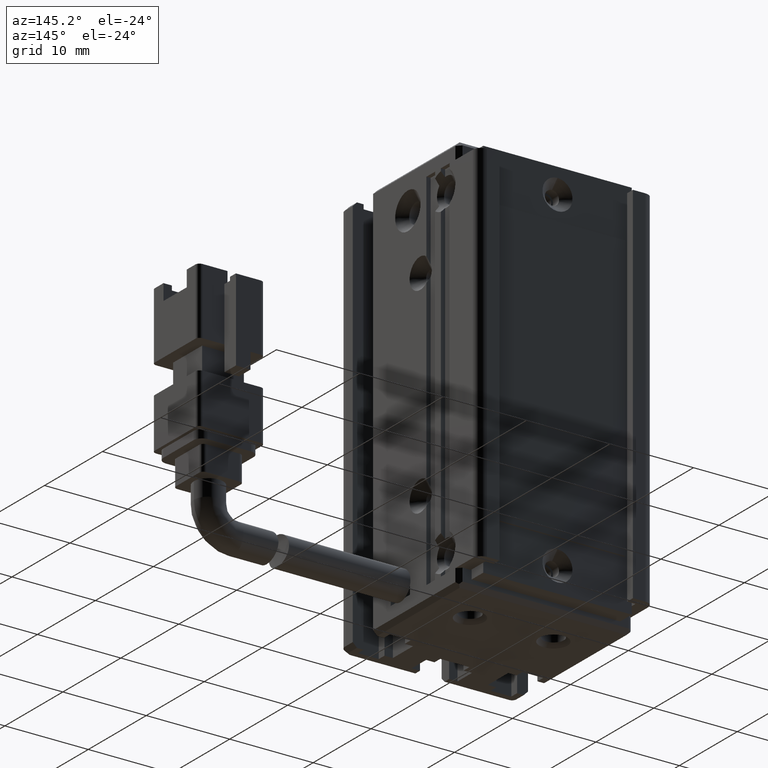
[diagram: clean part render]
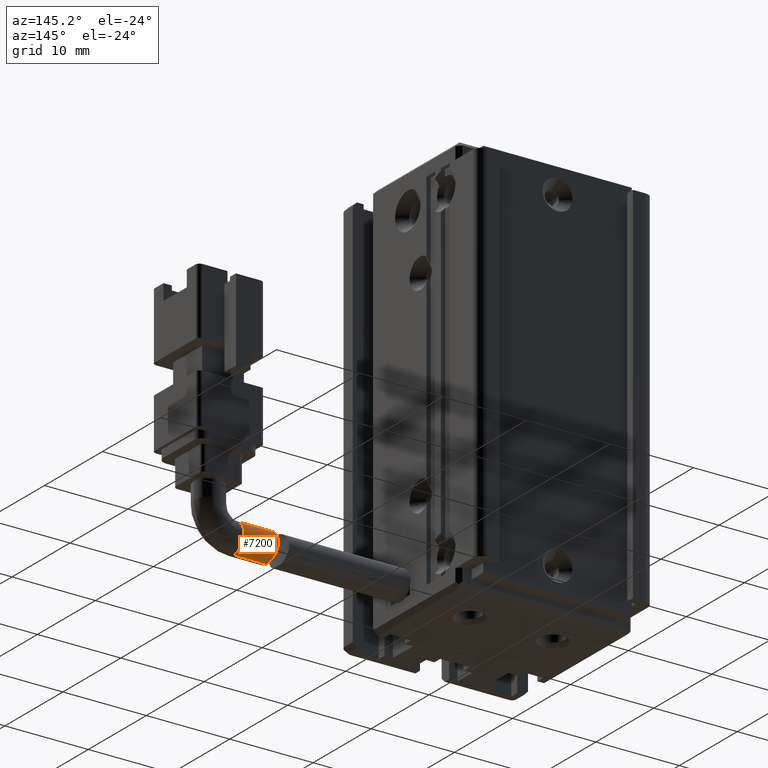
[diagram: same view with one face highlighted and labeled with its STEP entity id]
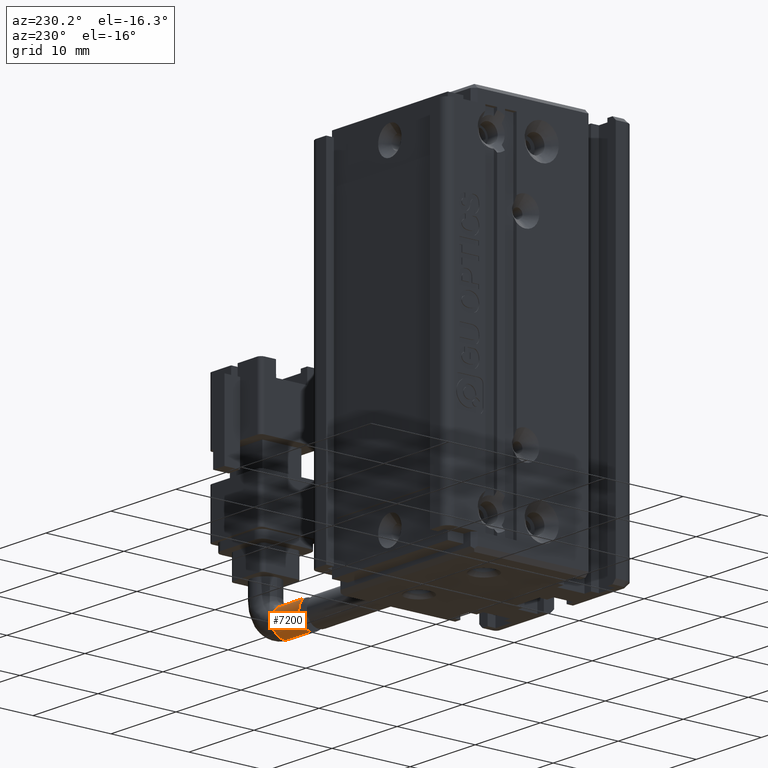
[diagram: same view with one face highlighted and labeled with its STEP entity id]
A machine part, auxiliary view. The second image highlights one B-rep face of the part: STEP entity #7200.
A second angle (auxiliary view) of the same face is appended — the face is thin or edge-on in the first view.
In plain terms, the highlighted cylindrical surface (edge-blend (fillet) strip) has radius 1.75 mm, axis along (-1, -0, -0).
Its self-contained STEP definition (entity closure, byte-faithful):
#468 = VECTOR ( 'NONE', #527, 1000.000000000000000 ) ;
#527 = DIRECTION ( 'NONE',  ( -1.000000000000000000, -3.304235192336770000E-015, -8.579261317967046800E-031 ) ) ;
#1605 = VERTEX_POINT ( 'NONE', #35514 ) ;
#1833 = CARTESIAN_POINT ( 'NONE',  ( 67.43698678606547500, 22.26849321272066400, -137.0218643407056600 ) ) ;
#1964 = CARTESIAN_POINT ( 'NONE',  ( 67.35705463766365100, 22.55897775111894500, -134.0592194820502800 ) ) ;
#3680 = CARTESIAN_POINT ( 'NONE',  ( 71.42537974683536100, 21.49073232304857600, -137.2000000000000200 ) ) ;
#3881 = CIRCLE ( 'NONE', #15302, 1.750000000000001600 ) ;
#4900 = CYLINDRICAL_SURFACE ( 'NONE', #29125, 1.750000000000001600 ) ;
#4908 = DIRECTION ( 'NONE',  ( -1.000000000000000000, -3.304235192336770000E-015, -8.579261317967046800E-031 ) ) ;
#4982 = CARTESIAN_POINT ( 'NONE',  ( 67.44984085051336800, 21.60680804937865000, -133.6999999999999600 ) ) ;
#5116 = CARTESIAN_POINT ( 'NONE',  ( 67.39984329400940100, 22.26783481747914500, -133.8778512500192600 ) ) ;
#5162 = EDGE_CURVE ( 'NONE', #25432, #20386, #14039, .T. ) ;
#5244 = CARTESIAN_POINT ( 'NONE',  ( 67.25170846070962200, 23.15140324081145500, -134.8861680324227500 ) ) ;
#6061 = EDGE_CURVE ( 'NONE', #20386, #1605, #31524, .T. ) ;
#7200 = ADVANCED_FACE ( 'NONE', ( #13745 ), #4900, .T. ) ;
#7970 = CARTESIAN_POINT ( 'NONE',  ( 67.44984085051338200, 21.49073232304856200, -133.6999999999999900 ) ) ;
#8007 = EDGE_CURVE ( 'NONE', #25432, #36557, #3881, .T. ) ;
#8149 = CARTESIAN_POINT ( 'NONE',  ( 71.42537974683536100, 21.49073232304857600, -135.4500000000000200 ) ) ;
#10410 = DIRECTION ( 'NONE',  ( 0.0000000000000000000, 0.0000000000000000000, -1.000000000000000000 ) ) ;
#10538 = DIRECTION ( 'NONE',  ( 1.000000000000000000, 3.304235192336770000E-015, 8.579261317967046800E-031 ) ) ;
#10581 = CARTESIAN_POINT ( 'NONE',  ( 67.35205659423870400, 22.88985874260199100, -136.5255146834794600 ) ) ;
#10705 = CARTESIAN_POINT ( 'NONE',  ( 67.40417489604252000, 22.55898536363726900, -136.8408297553675100 ) ) ;
#10830 = CARTESIAN_POINT ( 'NONE',  ( 67.24536993501358500, 23.24083235749495200, -135.3370683193368200 ) ) ;
#11086 = CARTESIAN_POINT ( 'NONE',  ( 67.44624549987466400, 21.72301278747130500, -133.7116921315142700 ) ) ;
#11597 = ORIENTED_EDGE ( 'NONE', *, *, #5162, .T. ) ;
#12212 = EDGE_CURVE ( 'NONE', #36557, #1605, #31670, .T. ) ;
#13584 = CARTESIAN_POINT ( 'NONE',  ( 67.47136508411073000, 21.49073232304856200, -137.1999999999999900 ) ) ;
#13705 = CARTESIAN_POINT ( 'NONE',  ( 67.24403675424812800, 23.22942088000613100, -135.2206007779651000 ) ) ;
#13745 = FACE_OUTER_BOUND ( 'NONE', #31064, .T. ) ;
#13837 = CARTESIAN_POINT ( 'NONE',  ( 67.27330235168545900, 23.01925002648934900, -134.5673499168243300 ) ) ;
#14039 = LINE ( 'NONE', #3680, #468 ) ;
#14091 = CARTESIAN_POINT ( 'NONE',  ( 67.42333103305581700, 22.05694026214441900, -133.7901962318933300 ) ) ;
#15302 = AXIS2_PLACEMENT_3D ( 'NONE', #21810, #10538, #10410 ) ;
#16563 = CARTESIAN_POINT ( 'NONE',  ( 67.38588623058109300, 22.37010254569658200, -133.9327239027712400 ) ) ;
#16685 = CARTESIAN_POINT ( 'NONE',  ( 67.45371154829165100, 22.05656144212894200, -137.1099719621386200 ) ) ;
#16950 = CARTESIAN_POINT ( 'NONE',  ( 67.27616060327723300, 23.19423489987271100, -135.9107937827152500 ) ) ;
#17082 = CARTESIAN_POINT ( 'NONE',  ( 67.46908930745947000, 21.72083805389395300, -137.1885708533534700 ) ) ;
#18349 = ORIENTED_EDGE ( 'NONE', *, *, #6061, .T. ) ;
#19215 = CARTESIAN_POINT ( 'NONE',  ( 67.47136508411073000, 21.49073232304856200, -137.1999999999999900 ) ) ;
#19872 = CARTESIAN_POINT ( 'NONE',  ( 67.34206032523766800, 22.64680295575514200, -134.1312272577276600 ) ) ;
#20130 = CARTESIAN_POINT ( 'NONE',  ( 67.46031785294418600, 21.94513311441134800, -137.1438409548440800 ) ) ;
#20386 = VERTEX_POINT ( 'NONE', #19215 ) ;
#20977 = CARTESIAN_POINT ( 'NONE',  ( 71.42537974683536100, 21.49073232304856900, -137.2000000000000200 ) ) ;
#21810 = CARTESIAN_POINT ( 'NONE',  ( 71.42537974683536100, 21.49073232304857600, -135.4500000000000200 ) ) ;
#23026 = CARTESIAN_POINT ( 'NONE',  ( 67.25727913656172100, 23.24053022228710900, -135.6804823031922400 ) ) ;
#23227 = DIRECTION ( 'NONE',  ( -1.000000000000000000, -3.304235192336770000E-015, -8.579261317967046800E-031 ) ) ;
#25432 = VERTEX_POINT ( 'NONE', #20977 ) ;
#25905 = CARTESIAN_POINT ( 'NONE',  ( 67.24724706289268300, 23.18459100183054700, -134.9955721427109000 ) ) ;
#26036 = CARTESIAN_POINT ( 'NONE',  ( 67.32343363472472200, 23.01980749161757000, -136.3310113894276300 ) ) ;
#27471 = VECTOR ( 'NONE', #23227, 1000.000000000000000 ) ;
#28556 = CARTESIAN_POINT ( 'NONE',  ( 67.47136508411077200, 21.60678308936699600, -137.2000000000001300 ) ) ;
#28808 = CARTESIAN_POINT ( 'NONE',  ( 67.42693556278865700, 22.36894299564884400, -136.9679980176778100 ) ) ;
#29066 = CARTESIAN_POINT ( 'NONE',  ( 67.43295112024853200, 21.94802212828940200, -133.7569097797770900 ) ) ;
#29125 = AXIS2_PLACEMENT_3D ( 'NONE', #8149, #4908, #31866 ) ;
#31064 = EDGE_LOOP ( 'NONE', ( #38290, #11597, #18349, #34420 ) ) ;
#31524 = B_SPLINE_CURVE_WITH_KNOTS ( 'NONE', 3,
 ( #13584, #28556, #17082, #20130, #16685, #1833, #28808, #10705, #31568, #10581, #26036, #16950, #23026, #10830, #13705, #25905, #5244, #13837, #31819, #19872, #1964, #16563, #5116, #14091, #29066, #11086, #4982, #7970 ),
 .UNSPECIFIED., .F., .F.,
 ( 4, 2, 2, 2, 2, 2, 2, 2, 2, 2, 2, 2, 2, 4 ),
 ( 0.005489779578333653700, 0.005832890876639693400, 0.006176002174945732300, 0.006519113473251771100, 0.006862224771557810800, 0.007548447368169828600, 0.008234669964781846400, 0.008577781263087815000, 0.008920892561393781900, 0.009607115158005719000, 0.009950226456311654600, 0.01029333775461759000, 0.01063644905292352600, 0.01097956035122946300 ),
 .UNSPECIFIED. ) ;
#31568 = CARTESIAN_POINT ( 'NONE',  ( 67.39139769048792100, 22.64866193278273700, -136.7670594754866300 ) ) ;
#31670 = LINE ( 'NONE', #35100, #27471 ) ;
#31819 = CARTESIAN_POINT ( 'NONE',  ( 67.29863038595921400, 22.89020791479749700, -134.3745412688684000 ) ) ;
#31866 = DIRECTION ( 'NONE',  ( 0.0000000000000000000, 0.0000000000000000000, 1.000000000000000000 ) ) ;
#34420 = ORIENTED_EDGE ( 'NONE', *, *, #12212, .F. ) ;
#35100 = CARTESIAN_POINT ( 'NONE',  ( 71.42537974683536100, 21.49073232304857600, -133.7000000000000200 ) ) ;
#35514 = CARTESIAN_POINT ( 'NONE',  ( 67.44984085051338200, 21.49073232304856200, -133.6999999999999900 ) ) ;
#36557 = VERTEX_POINT ( 'NONE', #36820 ) ;
#36820 = CARTESIAN_POINT ( 'NONE',  ( 71.42537974683536100, 21.49073232304856900, -133.7000000000000200 ) ) ;
#38290 = ORIENTED_EDGE ( 'NONE', *, *, #8007, .F. ) ;